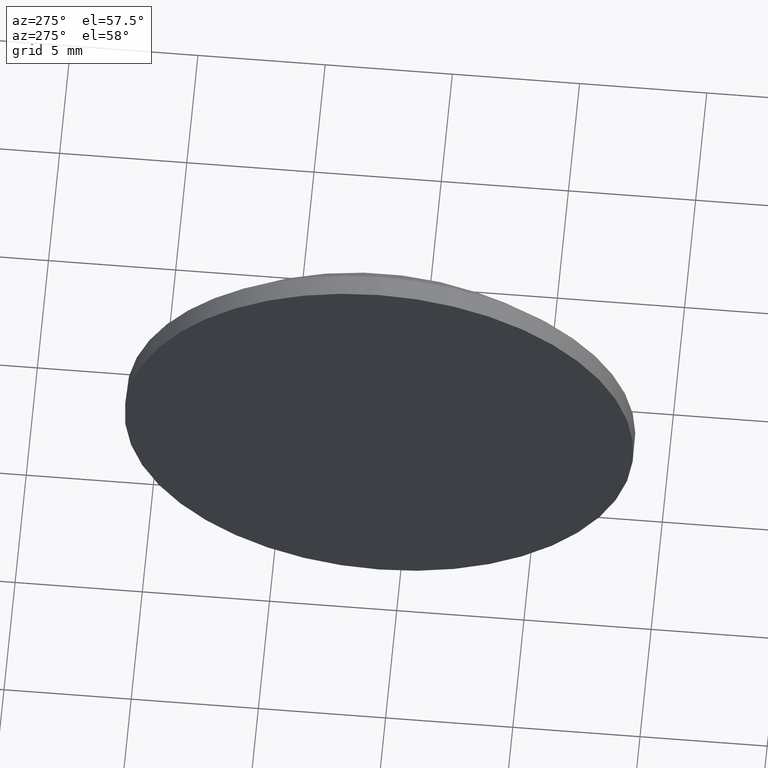
[diagram: clean part render]
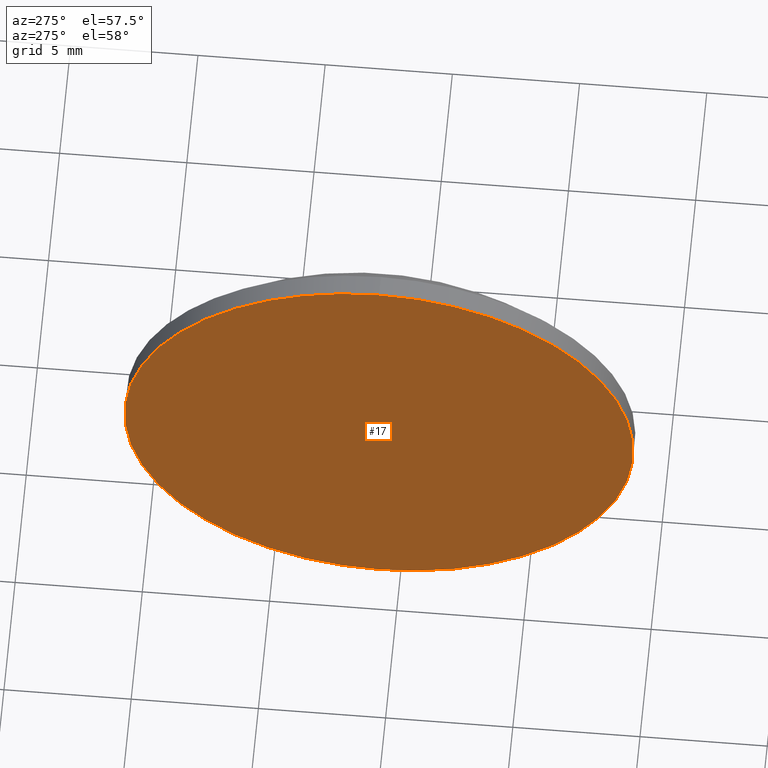
[diagram: same view with one face highlighted and labeled with its STEP entity id]
A machine part, auxiliary view. The second image highlights one B-rep face of the part: STEP entity #17.
In plain terms, the highlighted planar face has unit normal (1, 0, 0).
Its self-contained STEP definition (entity closure, byte-faithful):
#1 = CARTESIAN_POINT ( 'NONE',  ( 501.5675276990623400, 160.8342270699432700, 0.0000000000000000000 ) ) ;
#9 = CIRCLE ( 'NONE', #16, 10.00000000000000900 ) ;
#10 = DIRECTION ( 'NONE',  ( 1.000000000000000000, 0.0000000000000000000, 0.0000000000000000000 ) ) ;
#16 = AXIS2_PLACEMENT_3D ( 'NONE', #1, #18, #124 ) ;
#17 = ADVANCED_FACE ( 'NONE', ( #175 ), #55, .F. ) ;
#18 = DIRECTION ( 'NONE',  ( -1.000000000000000000, -0.0000000000000000000, -0.0000000000000000000 ) ) ;
#41 = AXIS2_PLACEMENT_3D ( 'NONE', #149, #10, #72 ) ;
#51 = CIRCLE ( 'NONE', #186, 10.00000000000000900 ) ;
#55 = PLANE ( 'NONE',  #41 ) ;
#62 = CARTESIAN_POINT ( 'NONE',  ( 501.5675276990623400, 160.8342270699432700, -10.00000000000000900 ) ) ;
#63 = ORIENTED_EDGE ( 'NONE', *, *, #142, .T. ) ;
#64 = DIRECTION ( 'NONE',  ( -1.000000000000000000, -0.0000000000000000000, -0.0000000000000000000 ) ) ;
#65 = EDGE_CURVE ( 'NONE', #132, #126, #51, .T. ) ;
#72 = DIRECTION ( 'NONE',  ( 0.0000000000000000000, 0.0000000000000000000, -1.000000000000000000 ) ) ;
#80 = ORIENTED_EDGE ( 'NONE', *, *, #65, .T. ) ;
#119 = CARTESIAN_POINT ( 'NONE',  ( 501.5675276990623400, 160.8342270699432700, 10.00000000000000900 ) ) ;
#122 = EDGE_LOOP ( 'NONE', ( #63, #80 ) ) ;
#124 = DIRECTION ( 'NONE',  ( 0.0000000000000000000, 0.0000000000000000000, 1.000000000000000000 ) ) ;
#126 = VERTEX_POINT ( 'NONE', #119 ) ;
#132 = VERTEX_POINT ( 'NONE', #62 ) ;
#142 = EDGE_CURVE ( 'NONE', #126, #132, #9, .T. ) ;
#144 = CARTESIAN_POINT ( 'NONE',  ( 501.5675276990623400, 160.8342270699432700, 0.0000000000000000000 ) ) ;
#149 = CARTESIAN_POINT ( 'NONE',  ( 501.5675276990623400, 160.8342270699432700, 0.0000000000000000000 ) ) ;
#155 = DIRECTION ( 'NONE',  ( 0.0000000000000000000, 0.0000000000000000000, 1.000000000000000000 ) ) ;
#175 = FACE_OUTER_BOUND ( 'NONE', #122, .T. ) ;
#186 = AXIS2_PLACEMENT_3D ( 'NONE', #144, #64, #155 ) ;